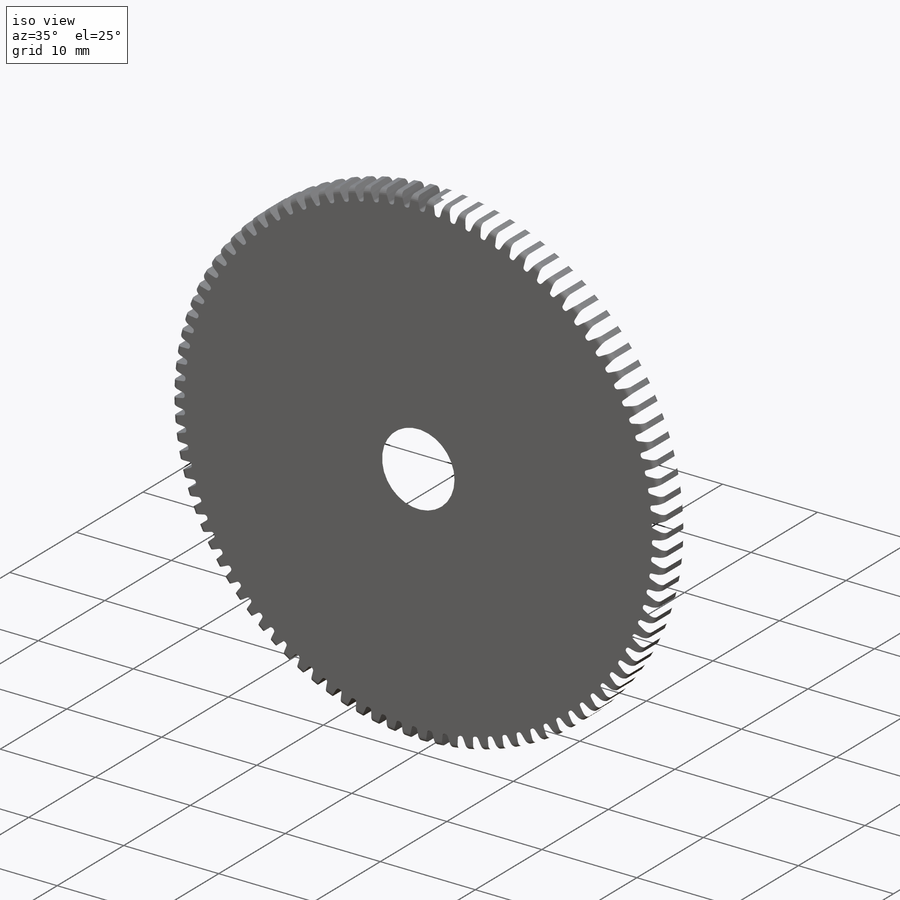
[diagram: iso view]
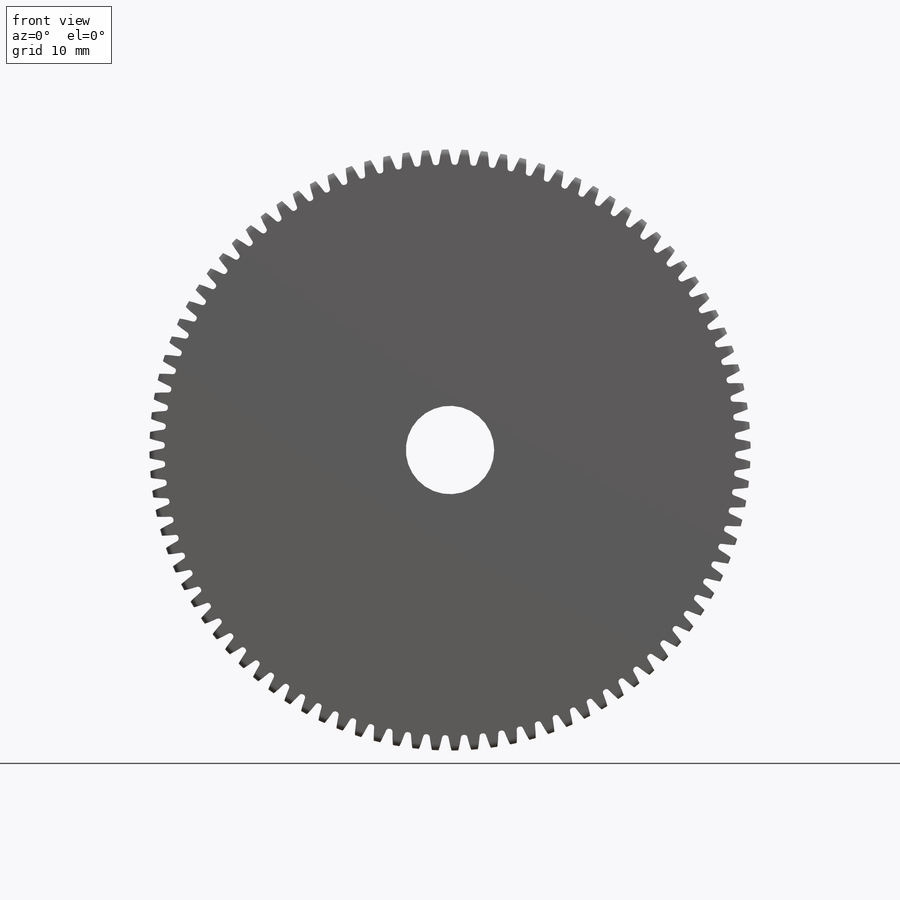
[diagram: front view]
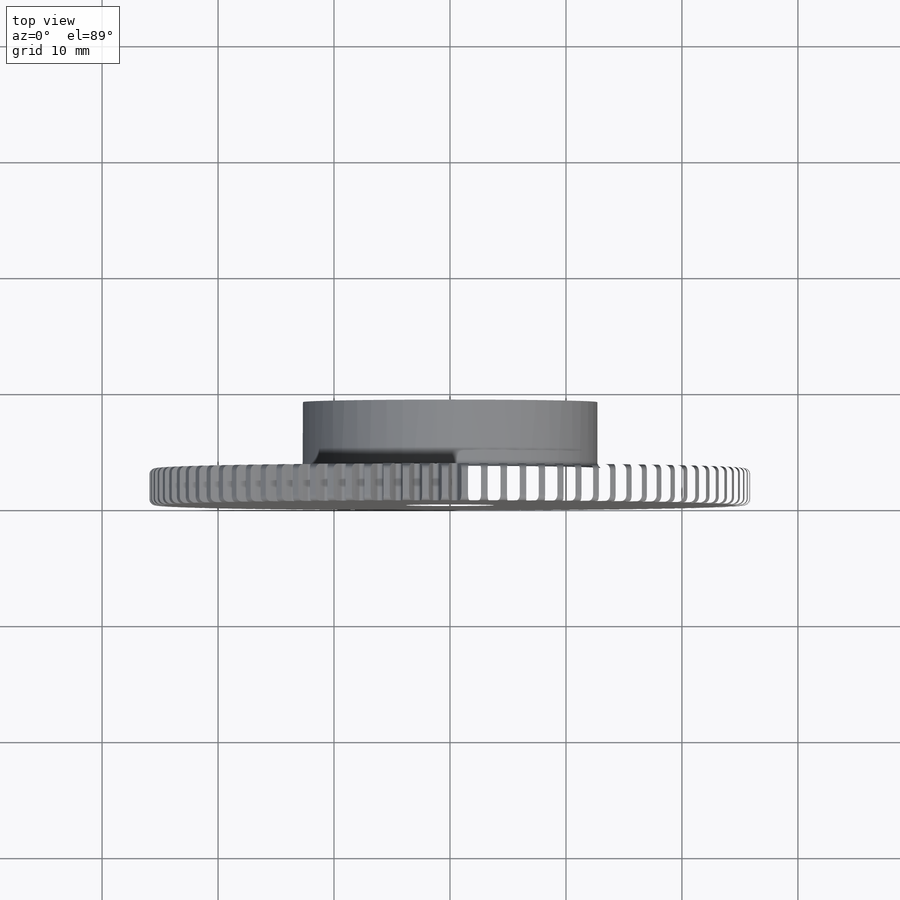
[diagram: top view]
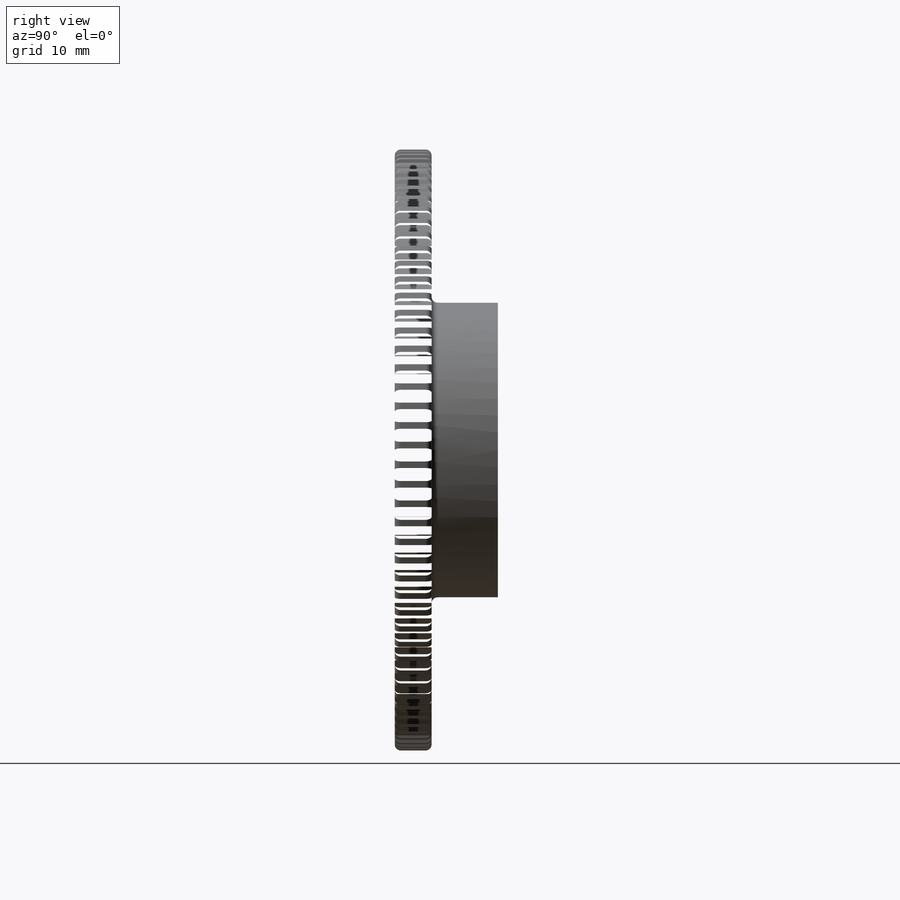
[diagram: right view]
SOLIDWORKS PART (.sldprt)
format: sldprt  version: not decoded by parser v0  size: 1,436,160 bytes
history: native  units: mm
features: sketch x6, fillet x2, cut_extrude x2, material x1, extrude x1, revolve x1, pattern_circular x1, chamfer x1 (+15 scaffold rows collapsed)
feature tree (30):
  scaffold x15  (default folders/planes/origin — collapsed)
  material  "Material <not specified>"
  sketch  "Sketch1"  dims[c1.OD=51.816mm c1.Ptich Dia=50.8mm c1.Base Circle Dia=~12.211752mm c1.Root Circle Dia=~9.885098mm c1.D1=~9.885098mm c1.Root Dia=~49.43475mm c1.D2=10.6299mm c2.D1=10.6299mm c2.D2=~10.863262mm c2.D3=12.7mm c3.D1=~1.79705mm c3.Number of Teeth=2438.4mm c3.D2=~1.03505mm c4.D1=~0.612246mm c4.D2=~1.080889mm c4.D3=0.508mm c5.D1=~1.190625mm]
  extrude  "Boss-Extrude1"  Depth=3.175mm
  sketch  "Sketch2"  dims[Face Wd=3.175mm D Oa'll Wd=12.7mm B Hub Dia=25.4mm D O'all Lg.=9.525mm]
  revolve  "Revolve1"  Angle=360deg
  fillet  "Fillet2"  Radius=0.51816mm
  sketch  "Sketch3"  dims[c1.Base Circle=~12.295475mm c1.D1=~13.461173mm c1.Pressure Angle=14.5deg c2.D1=~12.294355mm c2.Pressure Angle=~24.272834deg c3.D1=~12.294355mm c3.Pressure Angle=14.5deg c4.D1=~1.589913mm c4.D2=~1.539271mm c5.D1=~6.359652mm c5.D2=~1.456638mm c5.D3=~17.145661mm c5.D4=~1.115631mm c5.D5=~4.451756mm c6.D2=~10.811409mm c6.D4=~1.907896mm]
  sketch  "Sketch4"  dims[c1.D1=~1.246822mm c1.D2=~0.964641mm c2.D1=~1.291411mm c2.D3=~5.314305mm c3.D3=~10.395603deg c4.D3=~1.244821mm c4.D2=~6.319423mm c5.D2=~174.802941deg c6.D2=~0.965361mm c6.D1=~0.831215mm c6.D3=~1.246822mm]
  cut_extrude  "Cut-Extrude1"  [1 undecoded]
  fillet  "Fillet1"  Radius=0.249364mm
  pattern_circular  "CirPattern1"  Count=96 Angle=360deg
  sketch  "Sketch5"  dims[Bore Min=6.35mm Bore Max=3.175mm]
  cut_extrude  "Cut-Extrude2"  [1 undecoded]
  chamfer  "Chamfer1"  Distance=0.635mm Angle=45deg
  sketch  "Pitch Dia"  dims[D1=~0.398681mm]
decode coverage: 12 of 14 modeling features carry decoded parameters
note: ~ marks probable driven/reference dimensions
note: 2 parameter values undecoded
note: suppression state not decoded; provenance and decode notes live in map.json
